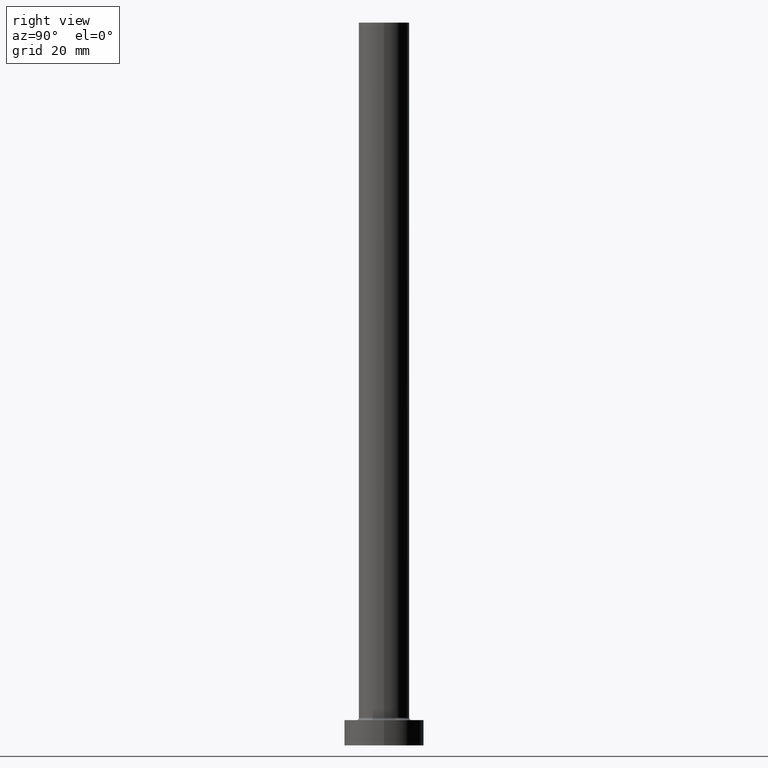
[diagram: clean part render]
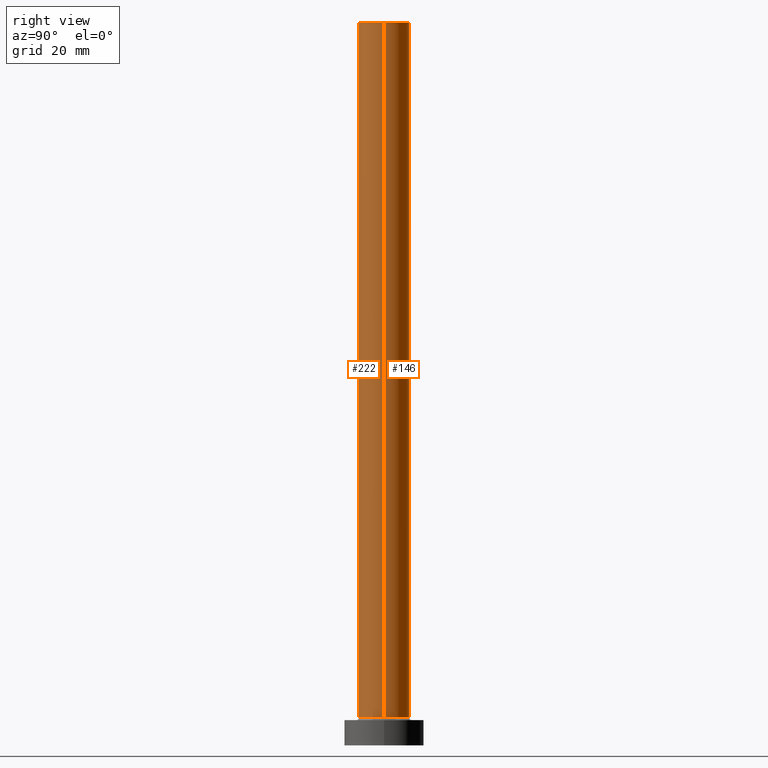
[diagram: same view with one multi-face feature highlighted, each face labeled with its STEP entity id]
A machine part, right view. The highlighted faces form ONE feature: a constant-radius fillet chain: 2 tangent blend faces with common blend radius 7 mm. The faces share edges in the B-rep.
Their STEP definitions:
[1] entity #146 (Cylinder):
#25 = AXIS2_PLACEMENT_3D ( 'NONE', #150, #405, #307 ) ;
#65 = CARTESIAN_POINT ( 'NONE',  ( 0.000000000000000000, 0.000000000000000000, 200.0000000000000000 ) ) ;
#67 = ORIENTED_EDGE ( 'NONE', *, *, #348, .T. ) ;
#71 = ORIENTED_EDGE ( 'NONE', *, *, #193, .F. ) ;
#100 = VERTEX_POINT ( 'NONE', #119 ) ;
#119 = CARTESIAN_POINT ( 'NONE',  ( -7.000000000000000888, 0.000000000000000000, 7.700000000000012612 ) ) ;
#127 = AXIS2_PLACEMENT_3D ( 'NONE', #235, #275, #383 ) ;
#139 = VERTEX_POINT ( 'NONE', #314 ) ;
#146 = ADVANCED_FACE ( 'NONE', ( #457 ), #285, .T. ) ;
#147 = DIRECTION ( 'NONE',  ( -0.000000000000000000, -0.000000000000000000, -1.000000000000000000 ) ) ;
#150 = CARTESIAN_POINT ( 'NONE',  ( 0.000000000000000000, 0.000000000000000000, 7.700000000000012612 ) ) ;
#179 = EDGE_CURVE ( 'NONE', #402, #139, #435, .T. ) ;
#193 = EDGE_CURVE ( 'NONE', #139, #100, #256, .T. ) ;
#212 = LINE ( 'NONE', #362, #359 ) ;
#234 = CIRCLE ( 'NONE', #25, 7.000000000000000888 ) ;
#235 = CARTESIAN_POINT ( 'NONE',  ( 0.000000000000000000, 0.000000000000000000, 200.0000000000000000 ) ) ;
#256 = LINE ( 'NONE', #327, #332 ) ;
#275 = DIRECTION ( 'NONE',  ( -0.000000000000000000, -0.000000000000000000, -1.000000000000000000 ) ) ;
#285 = CYLINDRICAL_SURFACE ( 'NONE', #127, 7.000000000000000888 ) ;
#289 = EDGE_CURVE ( 'NONE', #363, #100, #234, .T. ) ;
#303 = CARTESIAN_POINT ( 'NONE',  ( 7.000000000000000888, 8.572527594031474176E-16, 7.700000000000012612 ) ) ;
#307 = DIRECTION ( 'NONE',  ( 1.000000000000000000, 0.000000000000000000, 0.000000000000000000 ) ) ;
#313 = CARTESIAN_POINT ( 'NONE',  ( 7.000000000000000888, 8.572527594031474176E-16, 200.0000000000000000 ) ) ;
#314 = CARTESIAN_POINT ( 'NONE',  ( -7.000000000000000888, 0.000000000000000000, 200.0000000000000000 ) ) ;
#321 = DIRECTION ( 'NONE',  ( 0.000000000000000000, 0.000000000000000000, 1.000000000000000000 ) ) ;
#327 = CARTESIAN_POINT ( 'NONE',  ( -7.000000000000000888, 0.000000000000000000, 200.0000000000000000 ) ) ;
#332 = VECTOR ( 'NONE', #404, 1000.000000000000000 ) ;
#347 = ORIENTED_EDGE ( 'NONE', *, *, #289, .T. ) ;
#348 = EDGE_CURVE ( 'NONE', #402, #363, #212, .T. ) ;
#359 = VECTOR ( 'NONE', #147, 1000.000000000000000 ) ;
#362 = CARTESIAN_POINT ( 'NONE',  ( 7.000000000000000888, 8.572527594031474176E-16, 200.0000000000000000 ) ) ;
#363 = VERTEX_POINT ( 'NONE', #303 ) ;
#383 = DIRECTION ( 'NONE',  ( -1.000000000000000000, 0.000000000000000000, 0.000000000000000000 ) ) ;
#396 = EDGE_LOOP ( 'NONE', ( #431, #67, #347, #71 ) ) ;
#402 = VERTEX_POINT ( 'NONE', #313 ) ;
#404 = DIRECTION ( 'NONE',  ( -0.000000000000000000, -0.000000000000000000, -1.000000000000000000 ) ) ;
#405 = DIRECTION ( 'NONE',  ( 0.000000000000000000, 0.000000000000000000, 1.000000000000000000 ) ) ;
#416 = AXIS2_PLACEMENT_3D ( 'NONE', #65, #321, #438 ) ;
#431 = ORIENTED_EDGE ( 'NONE', *, *, #179, .F. ) ;
#435 = CIRCLE ( 'NONE', #416, 7.000000000000000888 ) ;
#438 = DIRECTION ( 'NONE',  ( 1.000000000000000000, 0.000000000000000000, 0.000000000000000000 ) ) ;
#457 = FACE_OUTER_BOUND ( 'NONE', #396, .T. ) ;
[2] entity #222 (Cylinder):
#54 = CIRCLE ( 'NONE', #209, 7.000000000000000888 ) ;
#99 = CARTESIAN_POINT ( 'NONE',  ( 0.000000000000000000, 0.000000000000000000, 200.0000000000000000 ) ) ;
#100 = VERTEX_POINT ( 'NONE', #119 ) ;
#119 = CARTESIAN_POINT ( 'NONE',  ( -7.000000000000000888, 0.000000000000000000, 7.700000000000012612 ) ) ;
#121 = AXIS2_PLACEMENT_3D ( 'NONE', #99, #240, #175 ) ;
#132 = FACE_OUTER_BOUND ( 'NONE', #284, .T. ) ;
#139 = VERTEX_POINT ( 'NONE', #314 ) ;
#147 = DIRECTION ( 'NONE',  ( -0.000000000000000000, -0.000000000000000000, -1.000000000000000000 ) ) ;
#175 = DIRECTION ( 'NONE',  ( -1.000000000000000000, 0.000000000000000000, 0.000000000000000000 ) ) ;
#193 = EDGE_CURVE ( 'NONE', #139, #100, #256, .T. ) ;
#209 = AXIS2_PLACEMENT_3D ( 'NONE', #281, #453, #452 ) ;
#212 = LINE ( 'NONE', #362, #359 ) ;
#222 = ADVANCED_FACE ( 'NONE', ( #132 ), #290, .T. ) ;
#240 = DIRECTION ( 'NONE',  ( -0.000000000000000000, -0.000000000000000000, -1.000000000000000000 ) ) ;
#256 = LINE ( 'NONE', #327, #332 ) ;
#281 = CARTESIAN_POINT ( 'NONE',  ( 0.000000000000000000, 0.000000000000000000, 7.700000000000012612 ) ) ;
#284 = EDGE_LOOP ( 'NONE', ( #360, #304, #372, #436 ) ) ;
#290 = CYLINDRICAL_SURFACE ( 'NONE', #121, 7.000000000000000888 ) ;
#303 = CARTESIAN_POINT ( 'NONE',  ( 7.000000000000000888, 8.572527594031474176E-16, 7.700000000000012612 ) ) ;
#304 = ORIENTED_EDGE ( 'NONE', *, *, #430, .F. ) ;
#313 = CARTESIAN_POINT ( 'NONE',  ( 7.000000000000000888, 8.572527594031474176E-16, 200.0000000000000000 ) ) ;
#314 = CARTESIAN_POINT ( 'NONE',  ( -7.000000000000000888, 0.000000000000000000, 200.0000000000000000 ) ) ;
#325 = CIRCLE ( 'NONE', #366, 7.000000000000000888 ) ;
#327 = CARTESIAN_POINT ( 'NONE',  ( -7.000000000000000888, 0.000000000000000000, 200.0000000000000000 ) ) ;
#332 = VECTOR ( 'NONE', #404, 1000.000000000000000 ) ;
#345 = CARTESIAN_POINT ( 'NONE',  ( 0.000000000000000000, 0.000000000000000000, 200.0000000000000000 ) ) ;
#348 = EDGE_CURVE ( 'NONE', #402, #363, #212, .T. ) ;
#359 = VECTOR ( 'NONE', #147, 1000.000000000000000 ) ;
#360 = ORIENTED_EDGE ( 'NONE', *, *, #348, .F. ) ;
#362 = CARTESIAN_POINT ( 'NONE',  ( 7.000000000000000888, 8.572527594031474176E-16, 200.0000000000000000 ) ) ;
#363 = VERTEX_POINT ( 'NONE', #303 ) ;
#366 = AXIS2_PLACEMENT_3D ( 'NONE', #345, #418, #378 ) ;
#372 = ORIENTED_EDGE ( 'NONE', *, *, #193, .T. ) ;
#378 = DIRECTION ( 'NONE',  ( 1.000000000000000000, 0.000000000000000000, 0.000000000000000000 ) ) ;
#394 = EDGE_CURVE ( 'NONE', #100, #363, #54, .T. ) ;
#402 = VERTEX_POINT ( 'NONE', #313 ) ;
#404 = DIRECTION ( 'NONE',  ( -0.000000000000000000, -0.000000000000000000, -1.000000000000000000 ) ) ;
#418 = DIRECTION ( 'NONE',  ( 0.000000000000000000, 0.000000000000000000, 1.000000000000000000 ) ) ;
#430 = EDGE_CURVE ( 'NONE', #139, #402, #325, .T. ) ;
#436 = ORIENTED_EDGE ( 'NONE', *, *, #394, .T. ) ;
#452 = DIRECTION ( 'NONE',  ( 1.000000000000000000, 0.000000000000000000, 0.000000000000000000 ) ) ;
#453 = DIRECTION ( 'NONE',  ( 0.000000000000000000, 0.000000000000000000, 1.000000000000000000 ) ) ;